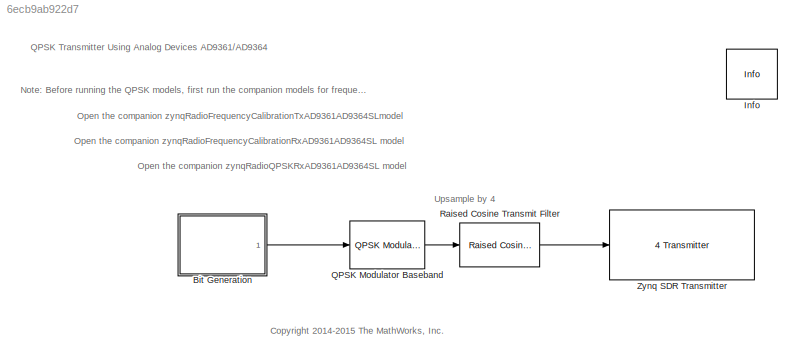
MODEL slx_6ecb9ab922d7
KIND model
CONFIG AbsTol = auto
CONFIG FixedStep = auto
CONFIG InitFcn = sdrqpsktx = zynqRadioQPSKTxAD9361AD9364SL_init;
CONFIG MaxStep = auto
CONFIG MinStep = auto
CONFIG PreLoadFcn = sdrqpsktx = zynqRadioQPSKTxAD9361AD9364SL_init;
CONFIG RelTol = 1e-3
CONFIG SampleTimeConstraint = Unconstrained
CONFIG Solver = FixedStepDiscrete
CONFIG SolverMode = SingleTasking
CONFIG SolverName = FixedStepDiscrete
CONFIG StartTime = 0.0
CONFIG StopTime = inf
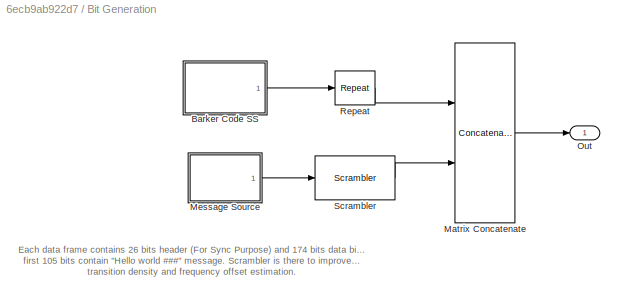
BLOCK [SubSystem] Bit Generation
  Ports = [0, 1]
  RequestExecContextInheritance = off
  Variant = off
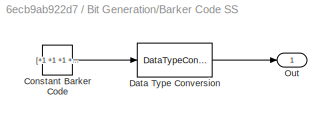
BLOCK [SubSystem] Bit Generation/Barker Code SS
  Ports = [0, 1]
  RequestExecContextInheritance = off
  Variant = off
BLOCK [Constant] Bit Generation/Barker Code SS/Constant Barker Code
  Value = [+1 +1 +1 +1 +1 -1 -1 +1 +1 -1 +1 -1 +1\n].' > 0  % Bipolar to Unipolar Conversion
  VectorParams1D = off
BLOCK [DataTypeConversion] Bit Generation/Barker Code SS/Data Type Conversion
  OutDataTypeStr = double
  RndMeth = Floor
  SaturateOnIntegerOverflow = off
BLOCK [Outport] Bit Generation/Barker Code SS/Out
  IconDisplay = Port number
BLOCK [Concatenate] Bit Generation/Matrix Concatenate
  Mode = Multidimensional array
  Ports = [2, 1]
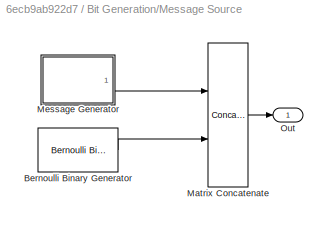
BLOCK [SubSystem] Bit Generation/Message Source
  Ports = [0, 1]
  RequestExecContextInheritance = off
  Variant = off
BLOCK [Reference] Bit Generation/Message Source/Bernoulli Binary Generator  REF=commrandsrc3/Bernoulli Binary
Generator
  Ports = [0, 1]
  SourceBlock = commrandsrc3/Bernoulli Binary\nGenerator
  SourceType = Bernoulli Binary Generator
BLOCK [Concatenate] Bit Generation/Message Source/Matrix Concatenate
  Mode = Multidimensional array
  Ports = [2, 1]
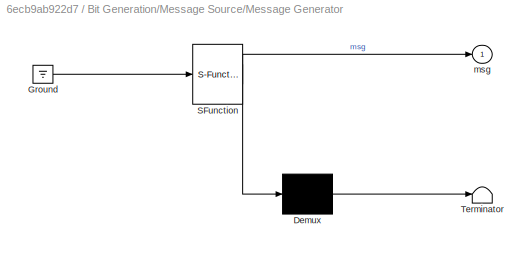
BLOCK [SubSystem] Bit Generation/Message Source/Message Generator
  ErrorFcn = Stateflow.Translate.translate
  PermitHierarchicalResolution = ExplicitOnly
  Ports = [0, 1]
  RequestExecContextInheritance = off
  SFBlockType = MATLAB Function
  TreatAsAtomicUnit = on
  Variant = off
BLOCK [Demux] Bit Generation/Message Source/Message Generator/ Demux 
  Outputs = 1
  Ports = [1, 1]
BLOCK [Ground] Bit Generation/Message Source/Message Generator/ Ground 
BLOCK [S-Function] Bit Generation/Message Source/Message Generator/ SFunction 
  EnableBusSupport = off
  FunctionName = sf_sfun
  PortCounts = [1 2]
  Ports = [1, 2]
  SFunctionDeploymentMode = off
  Tag = Stateflow S-Function zynqRadioQPSKTxAD9361AD9364SL 1
BLOCK [Terminator] Bit Generation/Message Source/Message Generator/ Terminator 
BLOCK [Outport] Bit Generation/Message Source/Message Generator/msg
  IconDisplay = Port number
BLOCK [Outport] Bit Generation/Message Source/Out
  IconDisplay = Port number
BLOCK [Outport] Bit Generation/Out
  IconDisplay = Port number
BLOCK [Reference] Bit Generation/Repeat  REF=dspsigops/Repeat
  Ports = [1, 1]
  SourceBlock = dspsigops/Repeat
  SourceType = Repeat
  UserDataPersistent = on
BLOCK [Reference] Bit Generation/Scrambler  REF=commsequence2/Scrambler
  Ports = [1, 1]
  SourceBlock = commsequence2/Scrambler
  SourceType = Scrambler
BLOCK [Reference] Info  REF=sdrzblksprivate/Info
  Ports = []
  SourceBlock = sdrzblksprivate/Info
  SourceType = Info
BLOCK [Reference] QPSK Modulator Baseband  REF=commdigbbndpm3/QPSK
Modulator
Baseband
  Ports = [1, 1]
  SourceBlock = commdigbbndpm3/QPSK\nModulator\nBaseband
  SourceType = QPSK Modulator Baseband
BLOCK [Reference] Raised Cosine Transmit Filter  REF=commfilt2/Raised Cosine
Transmit Filter
  Ports = [1, 1]
  SourceBlock = commfilt2/Raised Cosine\nTransmit Filter
  SourceType = Raised Cosine Transmit Filter
  UserDataPersistent = on
BLOCK [Reference] Zynq SDR Transmitter  REF=zc706fmc234_lib/ZC706 and 
FMCOMMS2//3//4 
Transmitter
  Ports = [1]
  SourceBlock = zc706fmc234_lib/ZC706 and \nFMCOMMS2//3//4 \nTransmitter
  SourceType = comm.internal.SDRTxZC706FMC234SL
ANNOTATION (root): <copyright redacted>
ANNOTATION (root): Note: Before running the QPSK models, first run the companion models for frequency offset calibration.
ANNOTATION (root): Open the companion zynqRadioFrequencyCalibrationRxAD9361AD9364SL model
ANNOTATION (root): Open the companion zynqRadioFrequencyCalibrationTxAD9361AD9364SLmodel
ANNOTATION (root): Open the companion zynqRadioQPSKRxAD9361AD9364SL model
ANNOTATION (root): QPSK Transmitter Using Analog Devices AD9361/AD9364
ANNOTATION (root): Upsample by 4
ANNOTATION Bit Generation: Each data frame contains 26 bits header (For Sync Purpose) and 174 bits data bits, first 105 bits contain "Hello world ###" message. Scrambler is there to improve data transition density and frequency offset estimation.
LINE Bit Generation/Barker Code SS/Constant Barker Code:1 -> Bit Generation/Barker Code SS/Data Type Conversion:1
LINE Bit Generation/Barker Code SS/Data Type Conversion:1 -> Bit Generation/Barker Code SS/Out:1
LINE Bit Generation/Barker Code SS:1 -> Bit Generation/Repeat:1
LINE Bit Generation/Matrix Concatenate:1 -> Bit Generation/Out:1
LINE Bit Generation/Message Source/Bernoulli Binary Generator:1 -> Bit Generation/Message Source/Matrix Concatenate:2
LINE Bit Generation/Message Source/Matrix Concatenate:1 -> Bit Generation/Message Source/Out:1
LINE Bit Generation/Message Source/Message Generator:1 -> Bit Generation/Message Source/Matrix Concatenate:1
LINE Bit Generation/Message Source:1 -> Bit Generation/Scrambler:1
LINE Bit Generation/Repeat:1 -> Bit Generation/Matrix Concatenate:1
LINE Bit Generation/Scrambler:1 -> Bit Generation/Matrix Concatenate:2
LINE Bit Generation:1 -> QPSK Modulator Baseband:1
LINE QPSK Modulator Baseband:1 -> Raised Cosine Transmit Filter:1
LINE Raised Cosine Transmit Filter:1 -> Zynq SDR Transmitter:1
CHART Bit Generation/Message Source/Message Generator states=1 transitions=1
  STATE_LABEL 'eML_blk_kernel()'
  STATE_LABEL "SCRIPT:\nfunction msg = genMsg\n%#codegen\npersistent msgStrSet count;\nif isempty(msgStrSet)\n    count = 0;\n    msgStrSet = ['Hello world 000';...\n              'Hello world 001';...\n              'Hello world 002';...\n              'Hello world 003';...\n              'Hello world 004';...\n              'Hello world 005';...\n              'Hello world 006';...\n              'Hello world 007';...\n    ...<+3462ch>"
